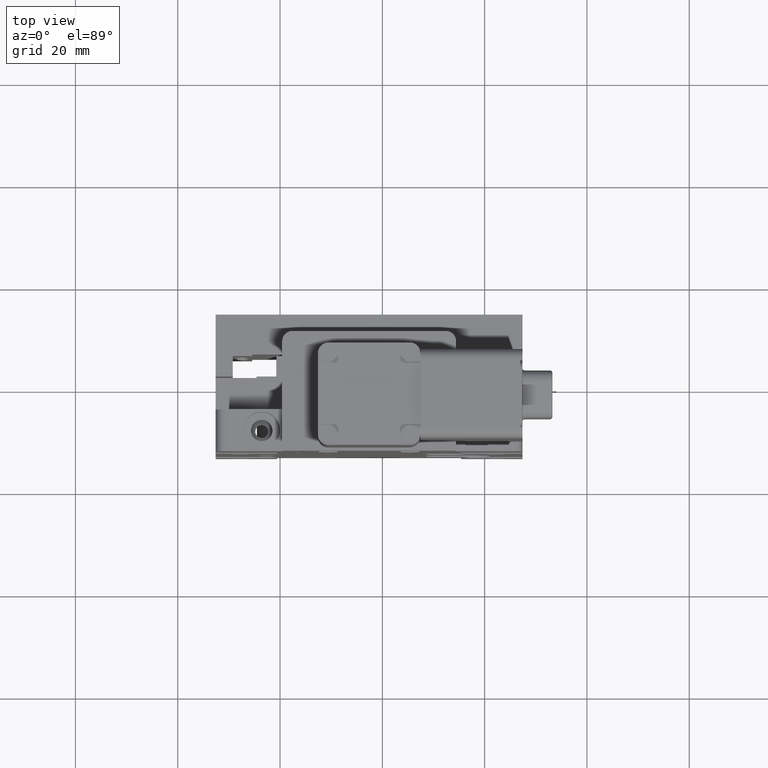
[diagram: clean part render]
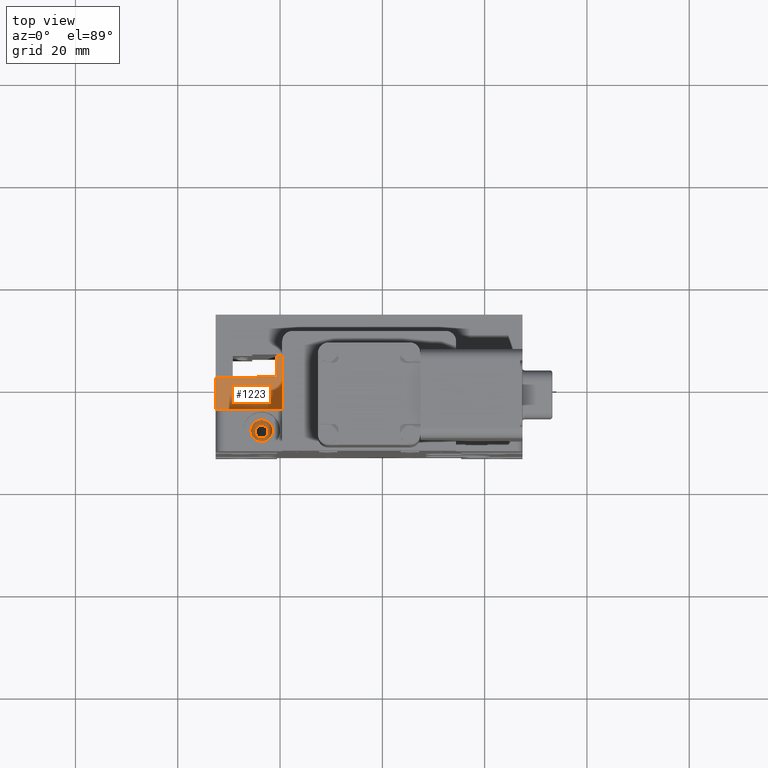
[diagram: same view with one face highlighted and labeled with its STEP entity id]
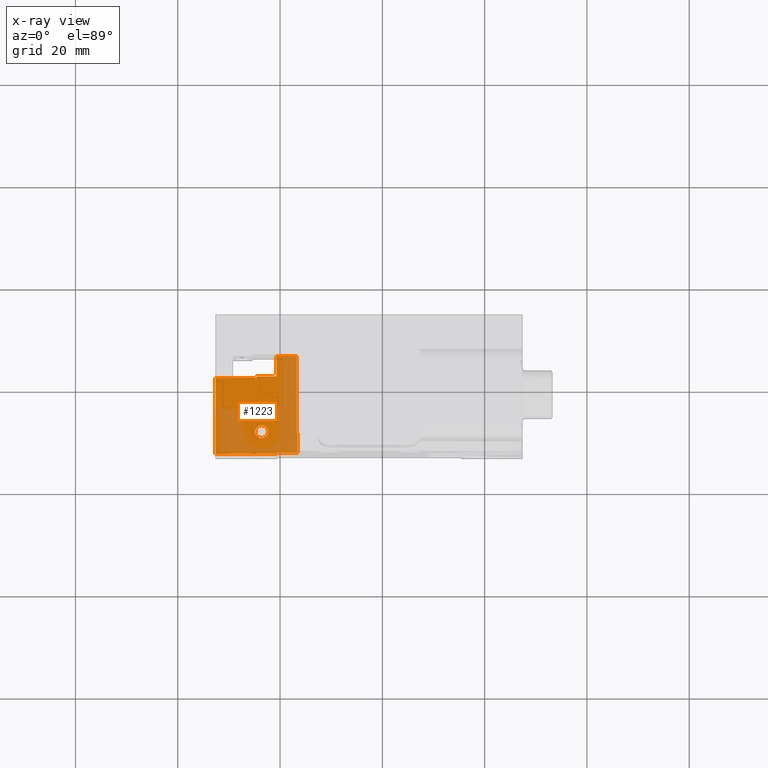
[diagram: x-ray of the same camera — body ghosted, the highlighted face saturated]
A machine part, top view. The second image highlights one B-rep face of the part: STEP entity #1223.
The next image is the same camera in x-ray: the body ghosted, the highlighted face saturated — about 47% of this face is hidden behind the body in this view.
In plain terms, the highlighted planar face has unit normal (0, 0, 1).
Its self-contained STEP definition (entity closure, byte-faithful):
#313 = VECTOR ( 'NONE', #3990, 1000.000000000000000 ) ;
#936 = VECTOR ( 'NONE', #2549, 1000.000000000000000 ) ;
#1130 = CARTESIAN_POINT ( 'NONE',  ( -16.59171959880752200, -9.098187545986036200, 92.50000000000000000 ) ) ;
#1135 = LINE ( 'NONE', #19368, #313 ) ;
#1223 = ADVANCED_FACE ( 'NONE', ( #2737, #16416 ), #13353, .T. ) ;
#1392 = ORIENTED_EDGE ( 'NONE', *, *, #16337, .T. ) ;
#1711 = VECTOR ( 'NONE', #29029, 1000.000000000000000 ) ;
#1779 = LINE ( 'NONE', #33204, #936 ) ;
#1806 = EDGE_CURVE ( 'NONE', #2854, #18712, #19561, .T. ) ;
#2182 = EDGE_CURVE ( 'NONE', #10642, #22757, #21066, .T. ) ;
#2282 = ORIENTED_EDGE ( 'NONE', *, *, #2182, .F. ) ;
#2549 = DIRECTION ( 'NONE',  ( -0.0000000000000000000, -1.000000000000000000, -0.0000000000000000000 ) ) ;
#2634 = ORIENTED_EDGE ( 'NONE', *, *, #29978, .T. ) ;
#2737 = FACE_OUTER_BOUND ( 'NONE', #31447, .T. ) ;
#2854 = VERTEX_POINT ( 'NONE', #7573 ) ;
#3061 = DIRECTION ( 'NONE',  ( 1.000000000000000000, 0.0000000000000000000, 0.0000000000000000000 ) ) ;
#3138 = CARTESIAN_POINT ( 'NONE',  ( -16.59171959880752200, -12.89818754598603200, 92.50000000000000000 ) ) ;
#3701 = LINE ( 'NONE', #8927, #22563 ) ;
#3749 = VERTEX_POINT ( 'NONE', #20786 ) ;
#3990 = DIRECTION ( 'NONE',  ( -1.000000000000000000, -0.0000000000000000000, -0.0000000000000000000 ) ) ;
#4301 = ORIENTED_EDGE ( 'NONE', *, *, #6820, .T. ) ;
#4985 = VECTOR ( 'NONE', #25493, 1000.000000000000000 ) ;
#5134 = LINE ( 'NONE', #33195, #11166 ) ;
#5768 = VECTOR ( 'NONE', #6524, 1000.000000000000000 ) ;
#6492 = EDGE_CURVE ( 'NONE', #21132, #11737, #1779, .T. ) ;
#6524 = DIRECTION ( 'NONE',  ( -1.000000000000000000, -0.0000000000000000000, -0.0000000000000000000 ) ) ;
#6820 = EDGE_CURVE ( 'NONE', #27822, #8938, #3701, .T. ) ;
#7412 = CARTESIAN_POINT ( 'NONE',  ( -24.59171959880752200, 1.901812454013962900, 92.50000000000000000 ) ) ;
#7521 = LINE ( 'NONE', #21665, #27139 ) ;
#7573 = CARTESIAN_POINT ( 'NONE',  ( -24.84171959880752200, -8.798187545986017700, 92.50000000000000000 ) ) ;
#8161 = LINE ( 'NONE', #20970, #15038 ) ;
#8285 = ORIENTED_EDGE ( 'NONE', *, *, #6492, .T. ) ;
#8700 = DIRECTION ( 'NONE',  ( -0.0000000000000000000, -0.0000000000000000000, 1.000000000000000000 ) ) ;
#8878 = CARTESIAN_POINT ( 'NONE',  ( -20.74171959880752400, 6.001812454013962600, 92.50000000000000000 ) ) ;
#8927 = CARTESIAN_POINT ( 'NONE',  ( -16.59171959880752200, -28.59818754598604000, 92.50000000000000000 ) ) ;
#8938 = VERTEX_POINT ( 'NONE', #1130 ) ;
#8998 = ORIENTED_EDGE ( 'NONE', *, *, #13843, .T. ) ;
#9018 = CARTESIAN_POINT ( 'NONE',  ( -23.59171959880752200, -8.798187545986017700, 92.50000000000000000 ) ) ;
#9057 = ORIENTED_EDGE ( 'NONE', *, *, #14027, .F. ) ;
#9124 = ORIENTED_EDGE ( 'NONE', *, *, #31741, .T. ) ;
#9665 = CARTESIAN_POINT ( 'NONE',  ( -32.59171959880752200, -13.09818754598603800, 92.50000000000000000 ) ) ;
#9987 = DIRECTION ( 'NONE',  ( -0.0000000000000000000, -1.000000000000000000, -0.0000000000000000000 ) ) ;
#10398 = CIRCLE ( 'NONE', #21537, 1.250000000000001100 ) ;
#10642 = VERTEX_POINT ( 'NONE', #12481 ) ;
#10855 = CARTESIAN_POINT ( 'NONE',  ( -24.59171959880752200, 1.901812454013962900, 92.50000000000000000 ) ) ;
#11166 = VECTOR ( 'NONE', #17904, 1000.000000000000000 ) ;
#11169 = CARTESIAN_POINT ( 'NONE',  ( 27.40828040119247400, -13.09818754598603800, 92.50000000000000000 ) ) ;
#11515 = EDGE_LOOP ( 'NONE', ( #15206, #25152 ) ) ;
#11627 = DIRECTION ( 'NONE',  ( 1.000000000000000000, 0.0000000000000000000, 0.0000000000000000000 ) ) ;
#11737 = VERTEX_POINT ( 'NONE', #13449 ) ;
#11845 = LINE ( 'NONE', #17874, #4985 ) ;
#12305 = DIRECTION ( 'NONE',  ( 0.0000000000000000000, -1.000000000000000000, 0.0000000000000000000 ) ) ;
#12332 = CARTESIAN_POINT ( 'NONE',  ( -32.59171959880752200, -13.09818754598603800, 92.50000000000000000 ) ) ;
#12481 = CARTESIAN_POINT ( 'NONE',  ( -20.59171959880752200, -12.89818754598603000, 92.50000000000000000 ) ) ;
#13353 = PLANE ( 'NONE',  #20428 ) ;
#13449 = CARTESIAN_POINT ( 'NONE',  ( -20.74171959880752400, 2.001812454013962100, 92.50000000000000000 ) ) ;
#13470 = DIRECTION ( 'NONE',  ( 1.000000000000000000, 0.0000000000000000000, -0.0000000000000000000 ) ) ;
#13843 = EDGE_CURVE ( 'NONE', #32732, #30877, #18485, .T. ) ;
#14027 = EDGE_CURVE ( 'NONE', #32732, #15168, #8161, .T. ) ;
#14346 = EDGE_CURVE ( 'NONE', #30877, #22757, #15391, .T. ) ;
#14508 = CARTESIAN_POINT ( 'NONE',  ( -32.59171959880752200, 1.701812454013962300, 92.50000000000000000 ) ) ;
#15038 = VECTOR ( 'NONE', #3061, 1000.000000000000000 ) ;
#15168 = VERTEX_POINT ( 'NONE', #17481 ) ;
#15206 = ORIENTED_EDGE ( 'NONE', *, *, #17518, .F. ) ;
#15391 = LINE ( 'NONE', #11169, #1711 ) ;
#15425 = CARTESIAN_POINT ( 'NONE',  ( -20.59171959880752200, -13.09818754598602900, 92.50000000000000000 ) ) ;
#16125 = EDGE_CURVE ( 'NONE', #24656, #8938, #5134, .T. ) ;
#16199 = ORIENTED_EDGE ( 'NONE', *, *, #25675, .T. ) ;
#16337 = EDGE_CURVE ( 'NONE', #10642, #27822, #7521, .T. ) ;
#16416 = FACE_BOUND ( 'NONE', #11515, .T. ) ;
#16644 = ORIENTED_EDGE ( 'NONE', *, *, #16125, .F. ) ;
#17424 = DIRECTION ( 'NONE',  ( -0.0000000000000000000, -1.000000000000000000, -0.0000000000000000000 ) ) ;
#17481 = CARTESIAN_POINT ( 'NONE',  ( -24.59171959880752200, 1.701812454013962300, 92.50000000000000000 ) ) ;
#17518 = EDGE_CURVE ( 'NONE', #18712, #2854, #10398, .T. ) ;
#17874 = CARTESIAN_POINT ( 'NONE',  ( -16.74171959880752400, 6.001812454013962600, 92.50000000000000000 ) ) ;
#17904 = DIRECTION ( 'NONE',  ( 1.000000000000000000, 0.0000000000000000000, 0.0000000000000000000 ) ) ;
#18145 = CARTESIAN_POINT ( 'NONE',  ( -22.34171959880752200, -8.798187545986017700, 92.50000000000000000 ) ) ;
#18485 = LINE ( 'NONE', #12332, #24481 ) ;
#18712 = VERTEX_POINT ( 'NONE', #18145 ) ;
#19233 = DIRECTION ( 'NONE',  ( -0.0000000000000000000, 1.000000000000000000, -0.0000000000000000000 ) ) ;
#19368 = CARTESIAN_POINT ( 'NONE',  ( -24.59171959880752200, 2.001812454013962100, 92.50000000000000000 ) ) ;
#19418 = LINE ( 'NONE', #8878, #5768 ) ;
#19561 = CIRCLE ( 'NONE', #28794, 1.250000000000001100 ) ;
#20037 = EDGE_CURVE ( 'NONE', #21313, #15168, #32904, .T. ) ;
#20428 = AXIS2_PLACEMENT_3D ( 'NONE', #10855, #28748, #13470 ) ;
#20786 = CARTESIAN_POINT ( 'NONE',  ( -16.74171959880752400, 6.001812454013962600, 92.50000000000000000 ) ) ;
#20970 = CARTESIAN_POINT ( 'NONE',  ( -32.59171959880752200, 1.701812454013962300, 92.50000000000000000 ) ) ;
#21066 = LINE ( 'NONE', #30145, #27899 ) ;
#21132 = VERTEX_POINT ( 'NONE', #30566 ) ;
#21313 = VERTEX_POINT ( 'NONE', #28778 ) ;
#21337 = CARTESIAN_POINT ( 'NONE',  ( -16.74171959880752400, -9.098187545986036200, 92.50000000000000000 ) ) ;
#21537 = AXIS2_PLACEMENT_3D ( 'NONE', #9018, #26911, #11627 ) ;
#21542 = ORIENTED_EDGE ( 'NONE', *, *, #14346, .T. ) ;
#21665 = CARTESIAN_POINT ( 'NONE',  ( -24.59171959880752200, -12.89818754598603000, 92.50000000000000000 ) ) ;
#22563 = VECTOR ( 'NONE', #19233, 1000.000000000000000 ) ;
#22757 = VERTEX_POINT ( 'NONE', #15425 ) ;
#24030 = CARTESIAN_POINT ( 'NONE',  ( -23.59171959880752200, -8.798187545986017700, 92.50000000000000000 ) ) ;
#24265 = DIRECTION ( 'NONE',  ( 1.000000000000000000, 0.0000000000000000000, -0.0000000000000000000 ) ) ;
#24481 = VECTOR ( 'NONE', #17424, 1000.000000000000000 ) ;
#24656 = VERTEX_POINT ( 'NONE', #21337 ) ;
#24678 = ORIENTED_EDGE ( 'NONE', *, *, #20037, .T. ) ;
#25152 = ORIENTED_EDGE ( 'NONE', *, *, #1806, .F. ) ;
#25493 = DIRECTION ( 'NONE',  ( -1.188166764367676300E-016, 1.000000000000000000, -0.0000000000000000000 ) ) ;
#25675 = EDGE_CURVE ( 'NONE', #3749, #21132, #19418, .T. ) ;
#26124 = VECTOR ( 'NONE', #9987, 1000.000000000000000 ) ;
#26589 = DIRECTION ( 'NONE',  ( 1.000000000000000000, 0.0000000000000000000, 0.0000000000000000000 ) ) ;
#26911 = DIRECTION ( 'NONE',  ( -0.0000000000000000000, -0.0000000000000000000, 1.000000000000000000 ) ) ;
#27139 = VECTOR ( 'NONE', #24265, 1000.000000000000000 ) ;
#27822 = VERTEX_POINT ( 'NONE', #3138 ) ;
#27899 = VECTOR ( 'NONE', #12305, 1000.000000000000000 ) ;
#28748 = DIRECTION ( 'NONE',  ( 0.0000000000000000000, 0.0000000000000000000, 1.000000000000000000 ) ) ;
#28778 = CARTESIAN_POINT ( 'NONE',  ( -24.59171959880752200, 2.001812454013962100, 92.50000000000000000 ) ) ;
#28794 = AXIS2_PLACEMENT_3D ( 'NONE', #24030, #8700, #26589 ) ;
#29029 = DIRECTION ( 'NONE',  ( 1.000000000000000000, -0.0000000000000000000, -0.0000000000000000000 ) ) ;
#29978 = EDGE_CURVE ( 'NONE', #24656, #3749, #11845, .T. ) ;
#30145 = CARTESIAN_POINT ( 'NONE',  ( -20.59171959880752200, 1.901812454013962900, 92.50000000000000000 ) ) ;
#30566 = CARTESIAN_POINT ( 'NONE',  ( -20.74171959880752400, 6.001812454013962600, 92.50000000000000000 ) ) ;
#30877 = VERTEX_POINT ( 'NONE', #9665 ) ;
#31447 = EDGE_LOOP ( 'NONE', ( #16644, #2634, #16199, #8285, #9124, #24678, #9057, #8998, #21542, #2282, #1392, #4301 ) ) ;
#31741 = EDGE_CURVE ( 'NONE', #11737, #21313, #1135, .T. ) ;
#32732 = VERTEX_POINT ( 'NONE', #14508 ) ;
#32904 = LINE ( 'NONE', #7412, #26124 ) ;
#33195 = CARTESIAN_POINT ( 'NONE',  ( -24.59171959880752200, -9.098187545986036200, 92.50000000000000000 ) ) ;
#33204 = CARTESIAN_POINT ( 'NONE',  ( -20.74171959880752400, 2.001812454013962100, 92.50000000000000000 ) ) ;